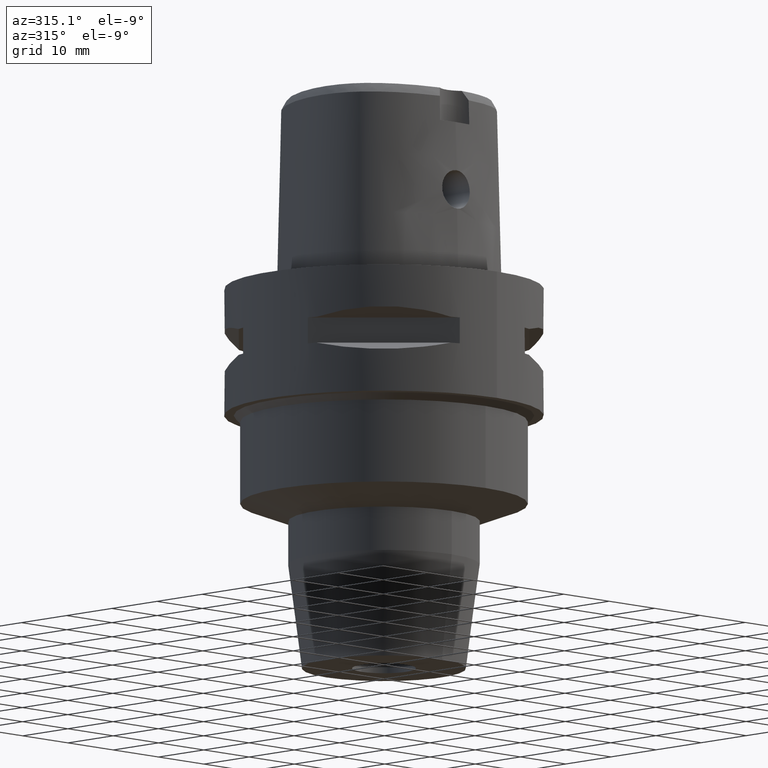
[diagram: clean part render]
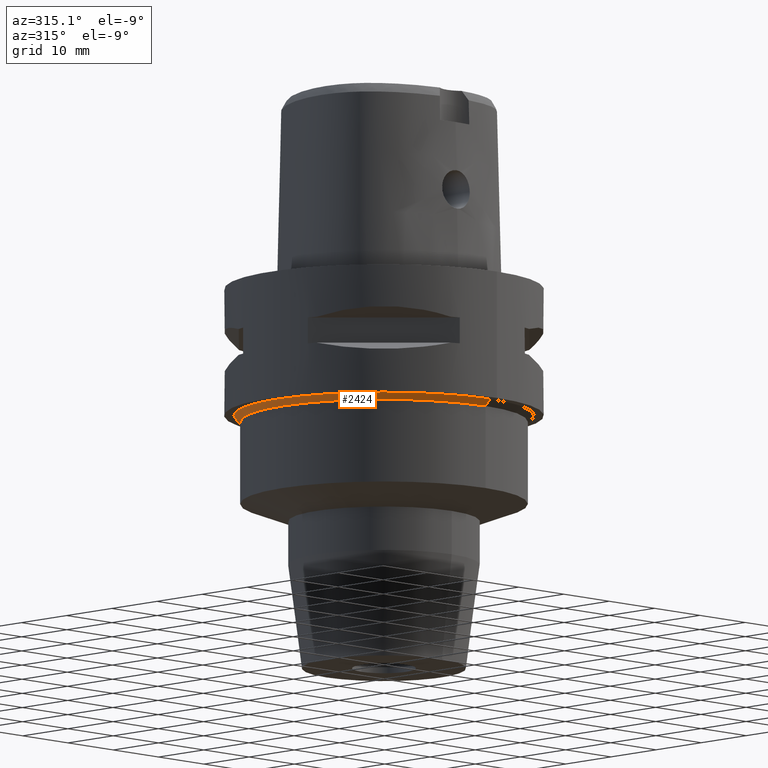
[diagram: same view with one face highlighted and labeled with its STEP entity id]
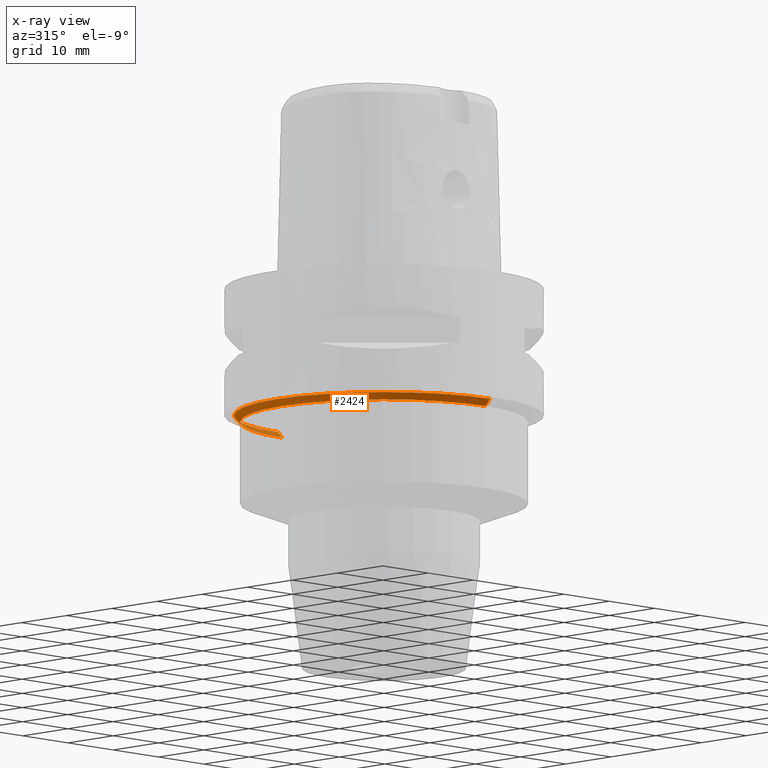
[diagram: x-ray of the same camera — body ghosted, the highlighted face saturated]
A machine part, auxiliary view. The second image highlights one B-rep face of the part: STEP entity #2424.
The next image is the same camera in x-ray: the body ghosted, the highlighted face saturated — about 7% of this face is hidden behind the body in this view.
In plain terms, the highlighted conical surface has half-angle 45 deg.
Its self-contained STEP definition (entity closure, byte-faithful):
#522=CARTESIAN_POINT('',(0.E0,0.E0,-2.E1));
#523=DIRECTION('',(0.E0,0.E0,-1.E0));
#524=DIRECTION('',(0.E0,-1.E0,0.E0));
#525=AXIS2_PLACEMENT_3D('',#522,#523,#524);
#538=DIRECTION('',(0.E0,7.071067811866E-1,-7.071067811865E-1));
#539=VECTOR('',#538,1.414213562373E0);
#540=CARTESIAN_POINT('',(0.E0,-2.35E1,-2.E1));
#541=LINE('',#540,#539);
#545=CARTESIAN_POINT('',(0.E0,0.E0,-2.1E1));
#546=DIRECTION('',(0.E0,0.E0,-1.E0));
#547=DIRECTION('',(0.E0,-1.E0,0.E0));
#548=AXIS2_PLACEMENT_3D('',#545,#546,#547);
#553=DIRECTION('',(0.E0,-7.071067811865E-1,-7.071067811866E-1));
#554=VECTOR('',#553,1.414213562373E0);
#555=CARTESIAN_POINT('',(0.E0,2.35E1,-2.E1));
#556=LINE('',#555,#554);
#1576=CARTESIAN_POINT('',(0.E0,-2.35E1,-2.E1));
#1577=CARTESIAN_POINT('',(0.E0,2.35E1,-2.E1));
#1578=VERTEX_POINT('',#1576);
#1579=VERTEX_POINT('',#1577);
#1580=CARTESIAN_POINT('',(0.E0,2.25E1,-2.1E1));
#1581=VERTEX_POINT('',#1580);
#1582=CARTESIAN_POINT('',(0.E0,-2.25E1,-2.1E1));
#1583=VERTEX_POINT('',#1582);
#2410=CARTESIAN_POINT('',(0.E0,0.E0,-2.05E1));
#2411=DIRECTION('',(0.E0,0.E0,1.E0));
#2412=DIRECTION('',(0.E0,1.E0,0.E0));
#2413=AXIS2_PLACEMENT_3D('',#2410,#2411,#2412);
#2414=CONICAL_SURFACE('',#2413,2.3E1,4.5E1);
#2416=ORIENTED_EDGE('',*,*,#2415,.F.);
#2417=ORIENTED_EDGE('',*,*,#2403,.F.);
#2419=ORIENTED_EDGE('',*,*,#2418,.T.);
#2421=ORIENTED_EDGE('',*,*,#2420,.T.);
#2422=EDGE_LOOP('',(#2416,#2417,#2419,#2421));
#2423=FACE_OUTER_BOUND('',#2422,.F.);
#526=CIRCLE('',#525,2.35E1);
#549=CIRCLE('',#548,2.25E1);
#2403=EDGE_CURVE('',#1578,#1579,#526,.T.);
#2415=EDGE_CURVE('',#1579,#1581,#556,.T.);
#2418=EDGE_CURVE('',#1578,#1583,#541,.T.);
#2420=EDGE_CURVE('',#1583,#1581,#549,.T.);
#2424=ADVANCED_FACE('',(#2423),#2414,.T.);